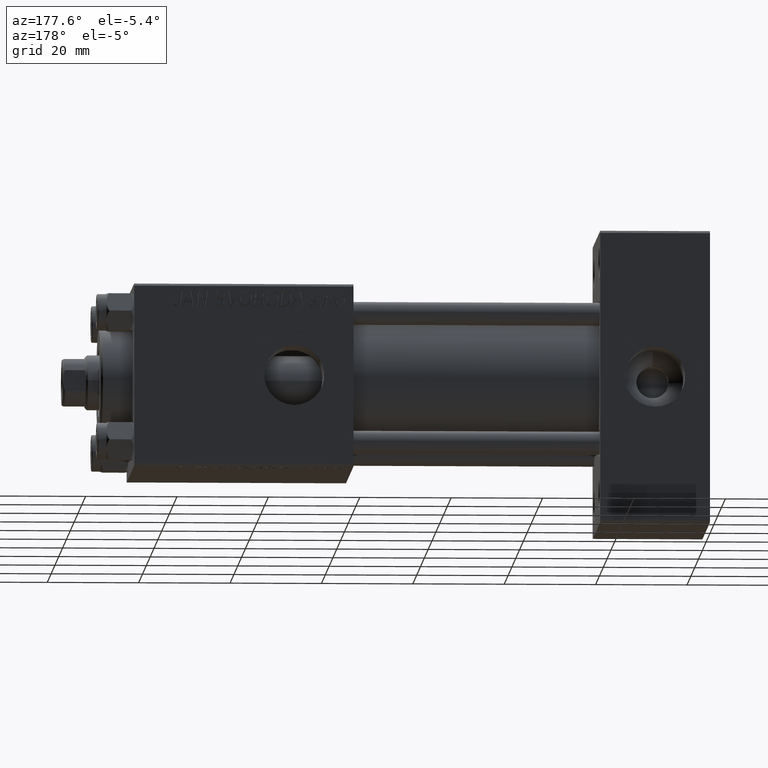
[diagram: clean part render]
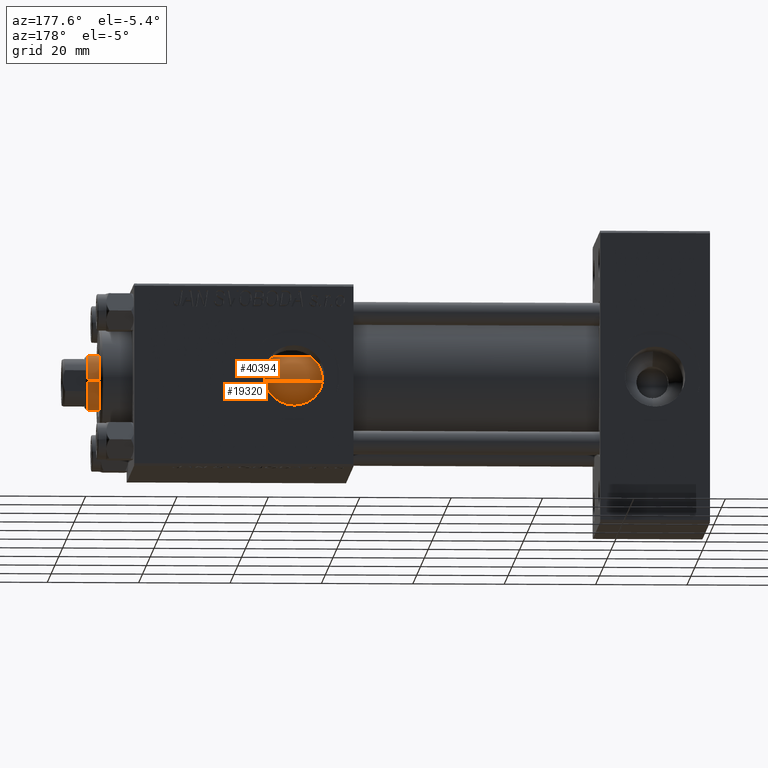
[diagram: same view with one multi-face feature highlighted, each face labeled with its STEP entity id]
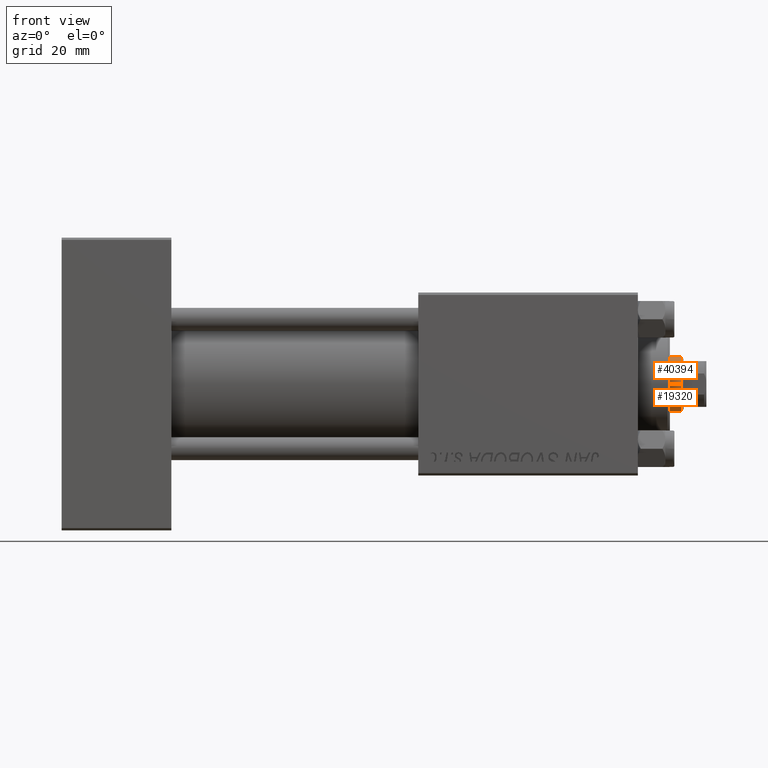
[diagram: same view with one multi-face feature highlighted, each face labeled with its STEP entity id]
A machine part, auxiliary view. The highlighted faces form ONE feature: a constant-radius fillet chain: 2 tangent blend faces with common blend radius 6 mm. The faces share edges in the B-rep.
A second angle (front view) of the same feature is appended — it is thin or edge-on in the first view.
Their STEP definitions:
[1] entity #40394 (Cylinder):
#2435 = CIRCLE ( 'NONE', #45168, 6.000000000000000888 ) ;
#3789 = ORIENTED_EDGE ( 'NONE', *, *, #34263, .F. ) ;
#5200 = ORIENTED_EDGE ( 'NONE', *, *, #13520, .T. ) ;
#7152 = DIRECTION ( 'NONE',  ( -0.000000000000000000, -0.000000000000000000, -1.000000000000000000 ) ) ;
#10481 = ORIENTED_EDGE ( 'NONE', *, *, #12976, .T. ) ;
#10583 = VERTEX_POINT ( 'NONE', #15299 ) ;
#11238 = AXIS2_PLACEMENT_3D ( 'NONE', #48117, #17569, #31966 ) ;
#11432 = FACE_OUTER_BOUND ( 'NONE', #33886, .T. ) ;
#12976 = EDGE_CURVE ( 'NONE', #10583, #13577, #18474, .T. ) ;
#13520 = EDGE_CURVE ( 'NONE', #13577, #43041, #32282, .T. ) ;
#13577 = VERTEX_POINT ( 'NONE', #14607 ) ;
#14011 = CARTESIAN_POINT ( 'NONE',  ( 0.000000000000000000, 0.000000000000000000, 27.00000000000000000 ) ) ;
#14058 = DIRECTION ( 'NONE',  ( -0.000000000000000000, -0.000000000000000000, -1.000000000000000000 ) ) ;
#14607 = CARTESIAN_POINT ( 'NONE',  ( -6.000000000000000888, 0.000000000000000000, 111.5000000000000426 ) ) ;
#15008 = VECTOR ( 'NONE', #14058, 1000.000000000000000 ) ;
#15299 = CARTESIAN_POINT ( 'NONE',  ( 6.000000000000000888, 7.347880794884120722E-16, 111.5000000000000426 ) ) ;
#16238 = ORIENTED_EDGE ( 'NONE', *, *, #19578, .T. ) ;
#17569 = DIRECTION ( 'NONE',  ( 0.000000000000000000, 0.000000000000000000, -1.000000000000000000 ) ) ;
#18474 = CIRCLE ( 'NONE', #11238, 6.000000000000000888 ) ;
#19364 = CARTESIAN_POINT ( 'NONE',  ( 6.000000000000000888, 7.347880794884120722E-16, 27.00000000000000000 ) ) ;
#19578 = EDGE_CURVE ( 'NONE', #43041, #36078, #2435, .T. ) ;
#24452 = CARTESIAN_POINT ( 'NONE',  ( -6.000000000000000888, 0.000000000000000000, 112.0000000000000000 ) ) ;
#24710 = CARTESIAN_POINT ( 'NONE',  ( -6.000000000000000888, 0.000000000000000000, 27.00000000000000000 ) ) ;
#27056 = DIRECTION ( 'NONE',  ( -1.000000000000000000, 0.000000000000000000, 0.000000000000000000 ) ) ;
#27738 = DIRECTION ( 'NONE',  ( -0.000000000000000000, -0.000000000000000000, -1.000000000000000000 ) ) ;
#29396 = DIRECTION ( 'NONE',  ( 1.000000000000000000, 0.000000000000000000, 0.000000000000000000 ) ) ;
#31966 = DIRECTION ( 'NONE',  ( 1.000000000000000000, 0.000000000000000000, 0.000000000000000000 ) ) ;
#32282 = LINE ( 'NONE', #24452, #48192 ) ;
#33236 = LINE ( 'NONE', #44844, #15008 ) ;
#33430 = DIRECTION ( 'NONE',  ( 0.000000000000000000, 0.000000000000000000, 1.000000000000000000 ) ) ;
#33886 = EDGE_LOOP ( 'NONE', ( #3789, #10481, #5200, #16238 ) ) ;
#34263 = EDGE_CURVE ( 'NONE', #10583, #36078, #33236, .T. ) ;
#34633 = CYLINDRICAL_SURFACE ( 'NONE', #44202, 6.000000000000000888 ) ;
#36078 = VERTEX_POINT ( 'NONE', #19364 ) ;
#40394 = ADVANCED_FACE ( 'NONE', ( #11432 ), #34633, .T. ) ;
#43041 = VERTEX_POINT ( 'NONE', #24710 ) ;
#44202 = AXIS2_PLACEMENT_3D ( 'NONE', #46013, #7152, #27056 ) ;
#44844 = CARTESIAN_POINT ( 'NONE',  ( 6.000000000000000888, 7.347880794884120722E-16, 112.0000000000000000 ) ) ;
#45168 = AXIS2_PLACEMENT_3D ( 'NONE', #14011, #33430, #29396 ) ;
#46013 = CARTESIAN_POINT ( 'NONE',  ( 0.000000000000000000, 0.000000000000000000, 112.0000000000000000 ) ) ;
#48117 = CARTESIAN_POINT ( 'NONE',  ( 0.000000000000000000, 0.000000000000000000, 111.5000000000000426 ) ) ;
#48192 = VECTOR ( 'NONE', #27738, 1000.000000000000000 ) ;
[2] entity #19320 (Cylinder):
#3724 = CYLINDRICAL_SURFACE ( 'NONE', #33884, 6.000000000000000888 ) ;
#4318 = DIRECTION ( 'NONE',  ( 1.000000000000000000, 0.000000000000000000, 0.000000000000000000 ) ) ;
#4559 = CARTESIAN_POINT ( 'NONE',  ( 0.000000000000000000, 0.000000000000000000, 27.00000000000000000 ) ) ;
#7361 = EDGE_CURVE ( 'NONE', #36078, #43041, #32777, .T. ) ;
#10583 = VERTEX_POINT ( 'NONE', #15299 ) ;
#11022 = AXIS2_PLACEMENT_3D ( 'NONE', #4559, #46224, #4318 ) ;
#11036 = EDGE_LOOP ( 'NONE', ( #30603, #14370, #17561, #30834 ) ) ;
#13520 = EDGE_CURVE ( 'NONE', #13577, #43041, #32282, .T. ) ;
#13577 = VERTEX_POINT ( 'NONE', #14607 ) ;
#14058 = DIRECTION ( 'NONE',  ( -0.000000000000000000, -0.000000000000000000, -1.000000000000000000 ) ) ;
#14370 = ORIENTED_EDGE ( 'NONE', *, *, #34263, .T. ) ;
#14607 = CARTESIAN_POINT ( 'NONE',  ( -6.000000000000000888, 0.000000000000000000, 111.5000000000000426 ) ) ;
#15008 = VECTOR ( 'NONE', #14058, 1000.000000000000000 ) ;
#15299 = CARTESIAN_POINT ( 'NONE',  ( 6.000000000000000888, 7.347880794884120722E-16, 111.5000000000000426 ) ) ;
#17561 = ORIENTED_EDGE ( 'NONE', *, *, #7361, .T. ) ;
#19320 = ADVANCED_FACE ( 'NONE', ( #38043 ), #3724, .T. ) ;
#19364 = CARTESIAN_POINT ( 'NONE',  ( 6.000000000000000888, 7.347880794884120722E-16, 27.00000000000000000 ) ) ;
#22646 = CARTESIAN_POINT ( 'NONE',  ( 0.000000000000000000, 0.000000000000000000, 112.0000000000000000 ) ) ;
#23099 = EDGE_CURVE ( 'NONE', #13577, #10583, #25918, .T. ) ;
#24452 = CARTESIAN_POINT ( 'NONE',  ( -6.000000000000000888, 0.000000000000000000, 112.0000000000000000 ) ) ;
#24710 = CARTESIAN_POINT ( 'NONE',  ( -6.000000000000000888, 0.000000000000000000, 27.00000000000000000 ) ) ;
#25918 = CIRCLE ( 'NONE', #42074, 6.000000000000000888 ) ;
#26460 = CARTESIAN_POINT ( 'NONE',  ( 0.000000000000000000, 0.000000000000000000, 111.5000000000000426 ) ) ;
#27738 = DIRECTION ( 'NONE',  ( -0.000000000000000000, -0.000000000000000000, -1.000000000000000000 ) ) ;
#30603 = ORIENTED_EDGE ( 'NONE', *, *, #23099, .T. ) ;
#30834 = ORIENTED_EDGE ( 'NONE', *, *, #13520, .F. ) ;
#30988 = DIRECTION ( 'NONE',  ( 0.000000000000000000, 0.000000000000000000, -1.000000000000000000 ) ) ;
#32282 = LINE ( 'NONE', #24452, #48192 ) ;
#32777 = CIRCLE ( 'NONE', #11022, 6.000000000000000888 ) ;
#33236 = LINE ( 'NONE', #44844, #15008 ) ;
#33884 = AXIS2_PLACEMENT_3D ( 'NONE', #22646, #45860, #42315 ) ;
#34263 = EDGE_CURVE ( 'NONE', #10583, #36078, #33236, .T. ) ;
#34275 = DIRECTION ( 'NONE',  ( 1.000000000000000000, 0.000000000000000000, 0.000000000000000000 ) ) ;
#36078 = VERTEX_POINT ( 'NONE', #19364 ) ;
#38043 = FACE_OUTER_BOUND ( 'NONE', #11036, .T. ) ;
#42074 = AXIS2_PLACEMENT_3D ( 'NONE', #26460, #30988, #34275 ) ;
#42315 = DIRECTION ( 'NONE',  ( -1.000000000000000000, 0.000000000000000000, 0.000000000000000000 ) ) ;
#43041 = VERTEX_POINT ( 'NONE', #24710 ) ;
#44844 = CARTESIAN_POINT ( 'NONE',  ( 6.000000000000000888, 7.347880794884120722E-16, 112.0000000000000000 ) ) ;
#45860 = DIRECTION ( 'NONE',  ( -0.000000000000000000, -0.000000000000000000, -1.000000000000000000 ) ) ;
#46224 = DIRECTION ( 'NONE',  ( 0.000000000000000000, 0.000000000000000000, 1.000000000000000000 ) ) ;
#48192 = VECTOR ( 'NONE', #27738, 1000.000000000000000 ) ;